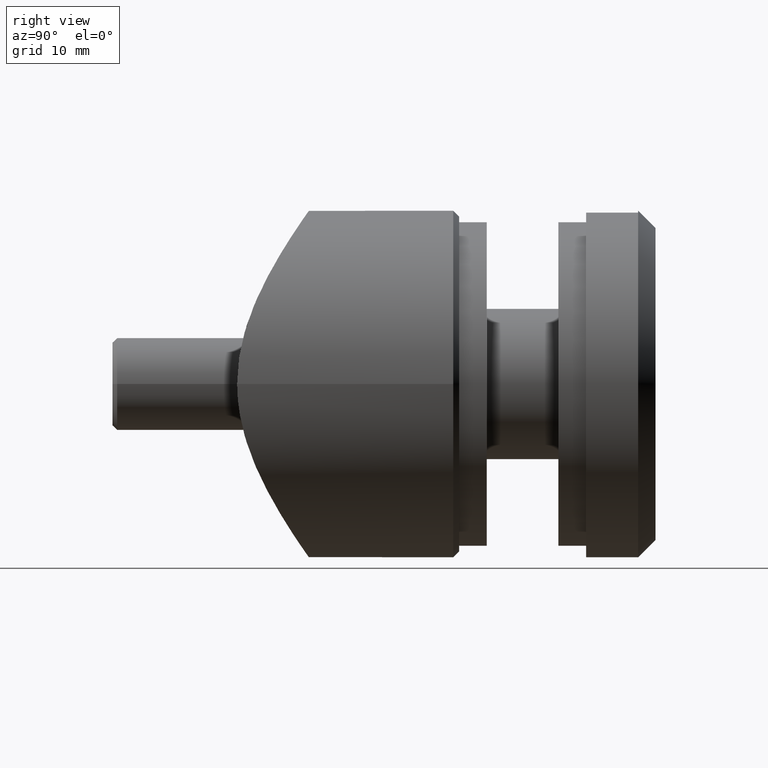
[diagram: clean part render]
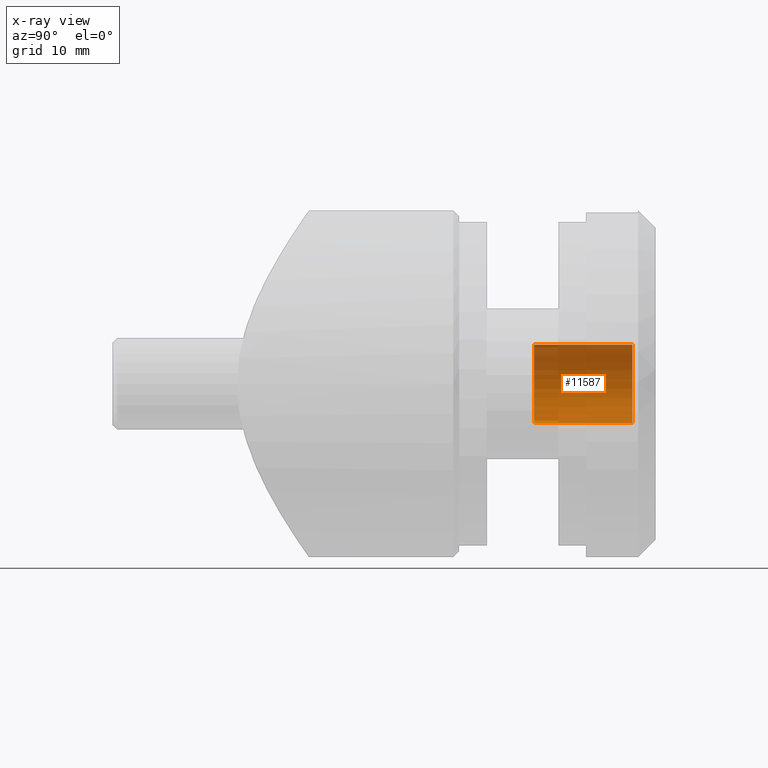
[diagram: x-ray — body ghosted, one internal face saturated and labeled with its STEP entity id]
A machine part, right view, then the same camera in x-ray: the body is ghosted and one INTERNAL B-rep face — a face not visible from any outside direction — is saturated and labeled: STEP entity #11587.
In plain terms, the highlighted cylindrical surface (partial cylindrical patch) has radius 3.4 mm, axis along (-0, -1, -0).
Its self-contained STEP definition (entity closure, byte-faithful):
#239 = ORIENTED_EDGE ( 'NONE', *, *, #13605, .T. ) ;
#694 = LINE ( 'NONE', #2422, #6699 ) ;
#797 = VERTEX_POINT ( 'NONE', #6458 ) ;
#858 = EDGE_CURVE ( 'NONE', #7805, #3662, #694, .T. ) ;
#1138 = DIRECTION ( 'NONE',  ( 0.000000000000000000, 0.000000000000000000, -1.000000000000000000 ) ) ;
#1228 = AXIS2_PLACEMENT_3D ( 'NONE', #5506, #1466, #1138 ) ;
#1466 = DIRECTION ( 'NONE',  ( -0.000000000000000000, -1.000000000000000000, -0.000000000000000000 ) ) ;
#1759 = LINE ( 'NONE', #13388, #3251 ) ;
#2230 = CIRCLE ( 'NONE', #1228, 3.399999999999997691 ) ;
#2422 = CARTESIAN_POINT ( 'NONE',  ( 0.000000000000000000, 0.000000000000000000, -3.399999999999998135 ) ) ;
#3251 = VECTOR ( 'NONE', #13538, 1000.000000000000000 ) ;
#3297 = ORIENTED_EDGE ( 'NONE', *, *, #858, .F. ) ;
#3600 = DIRECTION ( 'NONE',  ( -0.000000000000000000, -1.000000000000000000, -0.000000000000000000 ) ) ;
#3662 = VERTEX_POINT ( 'NONE', #10353 ) ;
#4252 = CIRCLE ( 'NONE', #7070, 3.399999999999998135 ) ;
#5506 = CARTESIAN_POINT ( 'NONE',  ( 0.000000000000000000, 9.000000000000001776, 0.000000000000000000 ) ) ;
#5722 = DIRECTION ( 'NONE',  ( 0.000000000000000000, 0.000000000000000000, -1.000000000000000000 ) ) ;
#6458 = CARTESIAN_POINT ( 'NONE',  ( 4.163799117100998094E-16, 9.000000000000001776, 3.399999999999997691 ) ) ;
#6699 = VECTOR ( 'NONE', #8838, 1000.000000000000000 ) ;
#7070 = AXIS2_PLACEMENT_3D ( 'NONE', #8928, #9961, #5722 ) ;
#7805 = VERTEX_POINT ( 'NONE', #8906 ) ;
#8717 = VERTEX_POINT ( 'NONE', #8850 ) ;
#8838 = DIRECTION ( 'NONE',  ( -0.000000000000000000, -1.000000000000000000, -0.000000000000000000 ) ) ;
#8850 = CARTESIAN_POINT ( 'NONE',  ( 4.163799117100998094E-16, 0.5000000000000043299, 3.399999999999998135 ) ) ;
#8906 = CARTESIAN_POINT ( 'NONE',  ( 0.000000000000000000, 9.000000000000001776, -3.399999999999997691 ) ) ;
#8928 = CARTESIAN_POINT ( 'NONE',  ( 0.000000000000000000, 0.5000000000000043299, 0.000000000000000000 ) ) ;
#9181 = EDGE_CURVE ( 'NONE', #797, #7805, #2230, .T. ) ;
#9299 = AXIS2_PLACEMENT_3D ( 'NONE', #13343, #3600, #11194 ) ;
#9409 = ORIENTED_EDGE ( 'NONE', *, *, #9181, .F. ) ;
#9961 = DIRECTION ( 'NONE',  ( 0.000000000000000000, -1.000000000000000000, 0.000000000000000000 ) ) ;
#10353 = CARTESIAN_POINT ( 'NONE',  ( 0.000000000000000000, 0.5000000000000043299, -3.399999999999998135 ) ) ;
#11194 = DIRECTION ( 'NONE',  ( 0.000000000000000000, 0.000000000000000000, -1.000000000000000000 ) ) ;
#11269 = EDGE_LOOP ( 'NONE', ( #9409, #13335, #239, #3297 ) ) ;
#11587 = ADVANCED_FACE ( 'NONE', ( #11760 ), #12758, .F. ) ;
#11760 = FACE_OUTER_BOUND ( 'NONE', #11269, .T. ) ;
#11767 = EDGE_CURVE ( 'NONE', #797, #8717, #1759, .T. ) ;
#12758 = CYLINDRICAL_SURFACE ( 'NONE', #9299, 3.399999999999998135 ) ;
#13335 = ORIENTED_EDGE ( 'NONE', *, *, #11767, .T. ) ;
#13343 = CARTESIAN_POINT ( 'NONE',  ( 0.000000000000000000, 0.000000000000000000, 0.000000000000000000 ) ) ;
#13388 = CARTESIAN_POINT ( 'NONE',  ( 4.163799117100998094E-16, 0.000000000000000000, 3.399999999999998135 ) ) ;
#13538 = DIRECTION ( 'NONE',  ( -0.000000000000000000, -1.000000000000000000, -0.000000000000000000 ) ) ;
#13605 = EDGE_CURVE ( 'NONE', #8717, #3662, #4252, .T. ) ;